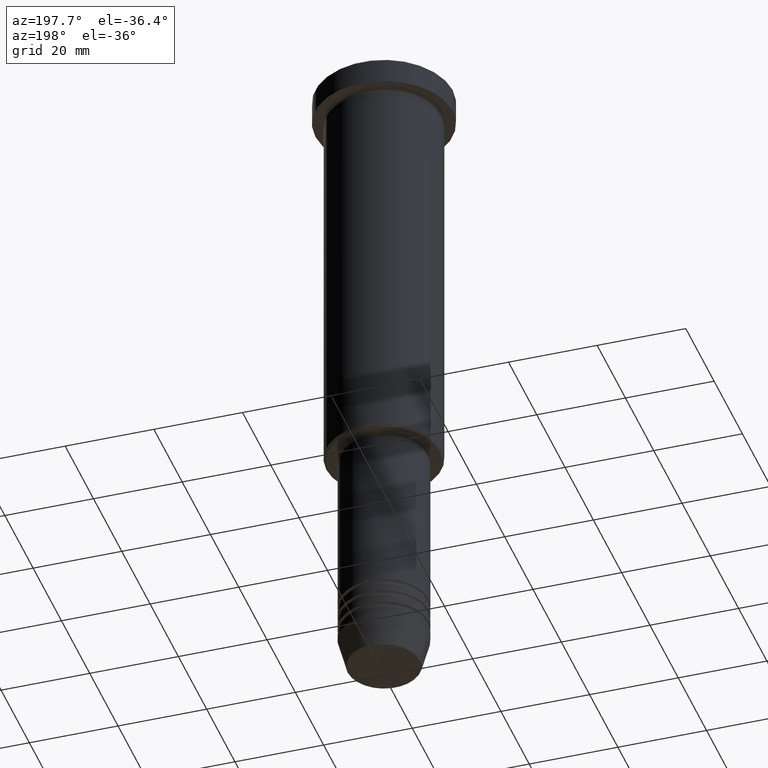
[diagram: clean part render]
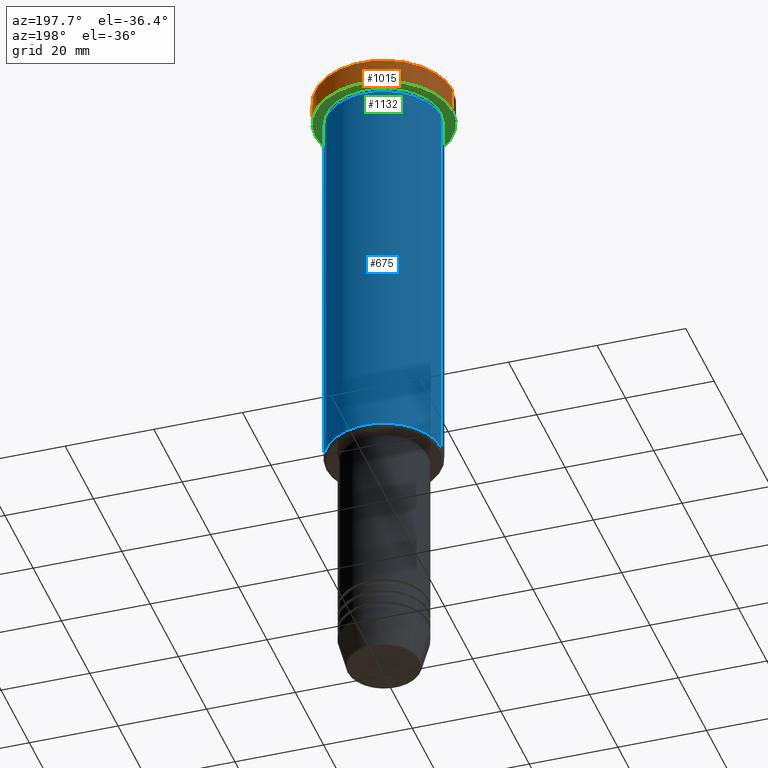
[diagram: same view with three faces highlighted in distinct colors, each labeled with its STEP entity id]
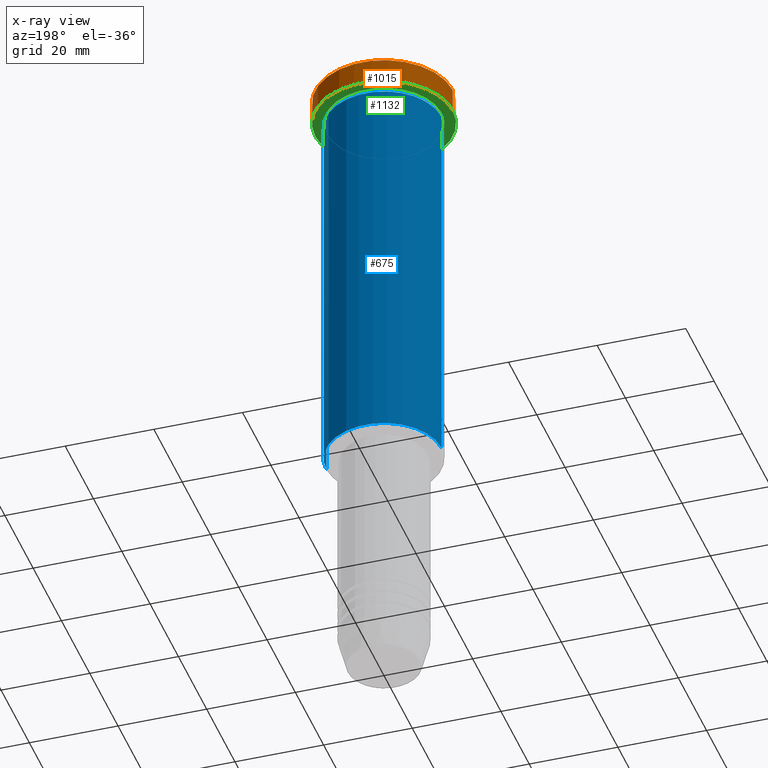
[diagram: x-ray of the same camera — body ghosted, the three highlighted faces saturated]
A machine part, auxiliary view with three faces highlighted in distinct colors.
The next image is the same camera in x-ray (body ghosted, the three faces saturated) — at least one of them is partly hidden behind the body in this view.
Their STEP definitions:

[orange] entity #1015 — the highlighted cylindrical surface (partial cylindrical patch) has radius 15.5 mm, axis along (-0, -0, 1).
#51 = DIRECTION ( 'NONE',  ( 1.000000000000000000, 0.000000000000000000, 0.000000000000000000 ) ) ;
#57 = ORIENTED_EDGE ( 'NONE', *, *, #135, .F. ) ;
#135 = EDGE_CURVE ( 'NONE', #959, #273, #1042, .T. ) ;
#141 = VECTOR ( 'NONE', #476, 1000.000000000000000 ) ;
#145 = CARTESIAN_POINT ( 'NONE',  ( 0.000000000000000000, 0.000000000000000000, -0.5000000000000264233 ) ) ;
#164 = AXIS2_PLACEMENT_3D ( 'NONE', #803, #266, #1001 ) ;
#193 = VERTEX_POINT ( 'NONE', #382 ) ;
#202 = CYLINDRICAL_SURFACE ( 'NONE', #863, 15.50000000000000000 ) ;
#226 = LINE ( 'NONE', #420, #858 ) ;
#266 = DIRECTION ( 'NONE',  ( -0.000000000000000000, -0.000000000000000000, 1.000000000000000000 ) ) ;
#273 = VERTEX_POINT ( 'NONE', #1153 ) ;
#333 = ORIENTED_EDGE ( 'NONE', *, *, #356, .T. ) ;
#356 = EDGE_CURVE ( 'NONE', #193, #1087, #226, .T. ) ;
#379 = EDGE_LOOP ( 'NONE', ( #989, #333, #523, #57 ) ) ;
#382 = CARTESIAN_POINT ( 'NONE',  ( -15.50000000000000000, 1.898202538678397557E-15, -5.999999999999995559 ) ) ;
#390 = CIRCLE ( 'NONE', #164, 15.50000000000000000 ) ;
#420 = CARTESIAN_POINT ( 'NONE',  ( -15.50000000000000000, 1.898202538678397557E-15, 0.000000000000000000 ) ) ;
#439 = EDGE_CURVE ( 'NONE', #959, #193, #390, .T. ) ;
#476 = DIRECTION ( 'NONE',  ( -0.000000000000000000, -0.000000000000000000, 1.000000000000000000 ) ) ;
#523 = ORIENTED_EDGE ( 'NONE', *, *, #781, .T. ) ;
#557 = CARTESIAN_POINT ( 'NONE',  ( 0.000000000000000000, 0.000000000000000000, 0.000000000000000000 ) ) ;
#563 = CARTESIAN_POINT ( 'NONE',  ( 15.50000000000000000, 0.000000000000000000, 0.000000000000000000 ) ) ;
#582 = AXIS2_PLACEMENT_3D ( 'NONE', #145, #865, #51 ) ;
#659 = CIRCLE ( 'NONE', #582, 15.50000000000000000 ) ;
#756 = DIRECTION ( 'NONE',  ( 1.000000000000000000, 0.000000000000000000, 0.000000000000000000 ) ) ;
#781 = EDGE_CURVE ( 'NONE', #1087, #273, #659, .T. ) ;
#785 = DIRECTION ( 'NONE',  ( -0.000000000000000000, -0.000000000000000000, 1.000000000000000000 ) ) ;
#803 = CARTESIAN_POINT ( 'NONE',  ( 0.000000000000000000, 0.000000000000000000, -5.999999999999995559 ) ) ;
#858 = VECTOR ( 'NONE', #785, 1000.000000000000000 ) ;
#863 = AXIS2_PLACEMENT_3D ( 'NONE', #557, #1005, #756 ) ;
#865 = DIRECTION ( 'NONE',  ( 0.000000000000000000, 0.000000000000000000, -1.000000000000000000 ) ) ;
#959 = VERTEX_POINT ( 'NONE', #1097 ) ;
#989 = ORIENTED_EDGE ( 'NONE', *, *, #439, .T. ) ;
#1001 = DIRECTION ( 'NONE',  ( 1.000000000000000000, 0.000000000000000000, 0.000000000000000000 ) ) ;
#1005 = DIRECTION ( 'NONE',  ( -0.000000000000000000, -0.000000000000000000, 1.000000000000000000 ) ) ;
#1015 = ADVANCED_FACE ( 'NONE', ( #1103 ), #202, .T. ) ;
#1029 = CARTESIAN_POINT ( 'NONE',  ( -15.50000000000000000, 1.898202538678397557E-15, -0.5000000000000264233 ) ) ;
#1042 = LINE ( 'NONE', #563, #141 ) ;
#1087 = VERTEX_POINT ( 'NONE', #1029 ) ;
#1097 = CARTESIAN_POINT ( 'NONE',  ( 15.50000000000000000, 0.000000000000000000, -5.999999999999995559 ) ) ;
#1103 = FACE_OUTER_BOUND ( 'NONE', #379, .T. ) ;
#1153 = CARTESIAN_POINT ( 'NONE',  ( 15.50000000000000000, 0.000000000000000000, -0.5000000000000264233 ) ) ;

[blue] entity #675 — the highlighted cylindrical surface (partial cylindrical patch) has radius 13 mm, axis along (-0, -0, 1).
#18 = EDGE_CURVE ( 'NONE', #555, #154, #625, .T. ) ;
#101 = CARTESIAN_POINT ( 'NONE',  ( -13.00000000000000000, 1.592040838891559095E-15, 0.000000000000000000 ) ) ;
#115 = DIRECTION ( 'NONE',  ( -0.000000000000000000, -0.000000000000000000, 1.000000000000000000 ) ) ;
#123 = AXIS2_PLACEMENT_3D ( 'NONE', #203, #115, #474 ) ;
#154 = VERTEX_POINT ( 'NONE', #652 ) ;
#189 = DIRECTION ( 'NONE',  ( -1.000000000000000000, 0.000000000000000000, 0.000000000000000000 ) ) ;
#203 = CARTESIAN_POINT ( 'NONE',  ( 0.000000000000000000, 0.000000000000000000, 0.000000000000000000 ) ) ;
#207 = CARTESIAN_POINT ( 'NONE',  ( -13.00000000000000000, 1.592040838891559095E-15, -95.50000000000001421 ) ) ;
#298 = DIRECTION ( 'NONE',  ( -0.000000000000000000, -0.000000000000000000, 1.000000000000000000 ) ) ;
#350 = VECTOR ( 'NONE', #1108, 1000.000000000000000 ) ;
#374 = VERTEX_POINT ( 'NONE', #1160 ) ;
#411 = CIRCLE ( 'NONE', #753, 13.00000000000000000 ) ;
#474 = DIRECTION ( 'NONE',  ( 1.000000000000000000, 0.000000000000000000, 0.000000000000000000 ) ) ;
#503 = ORIENTED_EDGE ( 'NONE', *, *, #18, .T. ) ;
#522 = EDGE_CURVE ( 'NONE', #649, #154, #977, .T. ) ;
#525 = AXIS2_PLACEMENT_3D ( 'NONE', #904, #547, #669 ) ;
#547 = DIRECTION ( 'NONE',  ( -0.000000000000000000, -0.000000000000000000, 1.000000000000000000 ) ) ;
#555 = VERTEX_POINT ( 'NONE', #207 ) ;
#625 = LINE ( 'NONE', #101, #1148 ) ;
#626 = EDGE_CURVE ( 'NONE', #374, #649, #841, .T. ) ;
#649 = VERTEX_POINT ( 'NONE', #1104 ) ;
#652 = CARTESIAN_POINT ( 'NONE',  ( -13.00000000000000000, 1.592040838891559095E-15, -6.999999999999995559 ) ) ;
#669 = DIRECTION ( 'NONE',  ( 1.000000000000000000, 0.000000000000000000, 0.000000000000000000 ) ) ;
#675 = ADVANCED_FACE ( 'NONE', ( #847 ), #1022, .T. ) ;
#728 = DIRECTION ( 'NONE',  ( -0.000000000000000000, -0.000000000000000000, 1.000000000000000000 ) ) ;
#744 = CARTESIAN_POINT ( 'NONE',  ( 13.00000000000000000, 0.000000000000000000, 0.000000000000000000 ) ) ;
#753 = AXIS2_PLACEMENT_3D ( 'NONE', #927, #298, #189 ) ;
#841 = LINE ( 'NONE', #744, #350 ) ;
#847 = FACE_OUTER_BOUND ( 'NONE', #984, .T. ) ;
#849 = ORIENTED_EDGE ( 'NONE', *, *, #522, .F. ) ;
#888 = ORIENTED_EDGE ( 'NONE', *, *, #985, .T. ) ;
#904 = CARTESIAN_POINT ( 'NONE',  ( 0.000000000000000000, 0.000000000000000000, -6.999999999999995559 ) ) ;
#927 = CARTESIAN_POINT ( 'NONE',  ( 0.000000000000000000, 0.000000000000000000, -95.50000000000001421 ) ) ;
#977 = CIRCLE ( 'NONE', #525, 13.00000000000000000 ) ;
#984 = EDGE_LOOP ( 'NONE', ( #888, #503, #849, #1028 ) ) ;
#985 = EDGE_CURVE ( 'NONE', #374, #555, #411, .T. ) ;
#1022 = CYLINDRICAL_SURFACE ( 'NONE', #123, 13.00000000000000000 ) ;
#1028 = ORIENTED_EDGE ( 'NONE', *, *, #626, .F. ) ;
#1104 = CARTESIAN_POINT ( 'NONE',  ( 13.00000000000000000, 0.000000000000000000, -6.999999999999995559 ) ) ;
#1108 = DIRECTION ( 'NONE',  ( -0.000000000000000000, -0.000000000000000000, 1.000000000000000000 ) ) ;
#1148 = VECTOR ( 'NONE', #728, 1000.000000000000000 ) ;
#1160 = CARTESIAN_POINT ( 'NONE',  ( 13.00000000000000000, 0.000000000000000000, -95.50000000000001421 ) ) ;

[green] entity #1132 — the highlighted planar face has unit normal (0, 0, -1).
#2 = ORIENTED_EDGE ( 'NONE', *, *, #439, .F. ) ;
#59 = EDGE_LOOP ( 'NONE', ( #2, #441 ) ) ;
#71 = VERTEX_POINT ( 'NONE', #90 ) ;
#90 = CARTESIAN_POINT ( 'NONE',  ( -13.00000000000000000, 0.000000000000000000, -5.999999999999994671 ) ) ;
#127 = CIRCLE ( 'NONE', #941, 13.00000000000000000 ) ;
#156 = DIRECTION ( 'NONE',  ( -1.000000000000000000, 0.000000000000000000, -0.000000000000000000 ) ) ;
#164 = AXIS2_PLACEMENT_3D ( 'NONE', #803, #266, #1001 ) ;
#193 = VERTEX_POINT ( 'NONE', #382 ) ;
#229 = CARTESIAN_POINT ( 'NONE',  ( 0.000000000000000000, 0.000000000000000000, -5.999999999999995559 ) ) ;
#244 = DIRECTION ( 'NONE',  ( 1.000000000000000000, 0.000000000000000000, 0.000000000000000000 ) ) ;
#252 = ORIENTED_EDGE ( 'NONE', *, *, #1105, .T. ) ;
#266 = DIRECTION ( 'NONE',  ( -0.000000000000000000, -0.000000000000000000, 1.000000000000000000 ) ) ;
#283 = CARTESIAN_POINT ( 'NONE',  ( 0.000000000000000000, 0.000000000000000000, -5.999999999999995559 ) ) ;
#382 = CARTESIAN_POINT ( 'NONE',  ( -15.50000000000000000, 1.898202538678397557E-15, -5.999999999999995559 ) ) ;
#390 = CIRCLE ( 'NONE', #164, 15.50000000000000000 ) ;
#404 = VERTEX_POINT ( 'NONE', #435 ) ;
#427 = CIRCLE ( 'NONE', #1093, 15.50000000000000000 ) ;
#435 = CARTESIAN_POINT ( 'NONE',  ( 13.00000000000000000, 1.592040838891559095E-15, -5.999999999999994671 ) ) ;
#439 = EDGE_CURVE ( 'NONE', #959, #193, #390, .T. ) ;
#441 = ORIENTED_EDGE ( 'NONE', *, *, #688, .F. ) ;
#512 = FACE_OUTER_BOUND ( 'NONE', #59, .T. ) ;
#560 = DIRECTION ( 'NONE',  ( -1.000000000000000000, 0.000000000000000000, 0.000000000000000000 ) ) ;
#590 = FACE_BOUND ( 'NONE', #937, .T. ) ;
#600 = CIRCLE ( 'NONE', #1056, 13.00000000000000000 ) ;
#602 = DIRECTION ( 'NONE',  ( -0.000000000000000000, -0.000000000000000000, 1.000000000000000000 ) ) ;
#605 = CARTESIAN_POINT ( 'NONE',  ( 0.000000000000000000, 0.000000000000000000, -5.999999999999995559 ) ) ;
#651 = DIRECTION ( 'NONE',  ( -0.000000000000000000, -0.000000000000000000, 1.000000000000000000 ) ) ;
#653 = EDGE_CURVE ( 'NONE', #71, #404, #600, .T. ) ;
#672 = PLANE ( 'NONE',  #811 ) ;
#688 = EDGE_CURVE ( 'NONE', #193, #959, #427, .T. ) ;
#803 = CARTESIAN_POINT ( 'NONE',  ( 0.000000000000000000, 0.000000000000000000, -5.999999999999995559 ) ) ;
#811 = AXIS2_PLACEMENT_3D ( 'NONE', #864, #869, #156 ) ;
#851 = DIRECTION ( 'NONE',  ( -1.000000000000000000, 0.000000000000000000, 0.000000000000000000 ) ) ;
#864 = CARTESIAN_POINT ( 'NONE',  ( 0.000000000000000000, 15.50000000000000000, -5.999999999999995559 ) ) ;
#869 = DIRECTION ( 'NONE',  ( 0.000000000000000000, 0.000000000000000000, -1.000000000000000000 ) ) ;
#937 = EDGE_LOOP ( 'NONE', ( #949, #252 ) ) ;
#941 = AXIS2_PLACEMENT_3D ( 'NONE', #229, #602, #851 ) ;
#949 = ORIENTED_EDGE ( 'NONE', *, *, #653, .T. ) ;
#959 = VERTEX_POINT ( 'NONE', #1097 ) ;
#1001 = DIRECTION ( 'NONE',  ( 1.000000000000000000, 0.000000000000000000, 0.000000000000000000 ) ) ;
#1056 = AXIS2_PLACEMENT_3D ( 'NONE', #283, #651, #560 ) ;
#1093 = AXIS2_PLACEMENT_3D ( 'NONE', #605, #1137, #244 ) ;
#1097 = CARTESIAN_POINT ( 'NONE',  ( 15.50000000000000000, 0.000000000000000000, -5.999999999999995559 ) ) ;
#1105 = EDGE_CURVE ( 'NONE', #404, #71, #127, .T. ) ;
#1132 = ADVANCED_FACE ( 'NONE', ( #590, #512 ), #672, .T. ) ;
#1137 = DIRECTION ( 'NONE',  ( -0.000000000000000000, -0.000000000000000000, 1.000000000000000000 ) ) ;